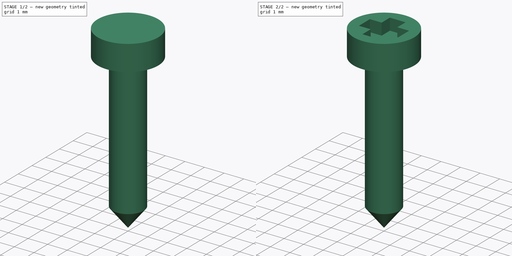
[diagram: build sequence overview — one tinted view per stage of 2, left to right]
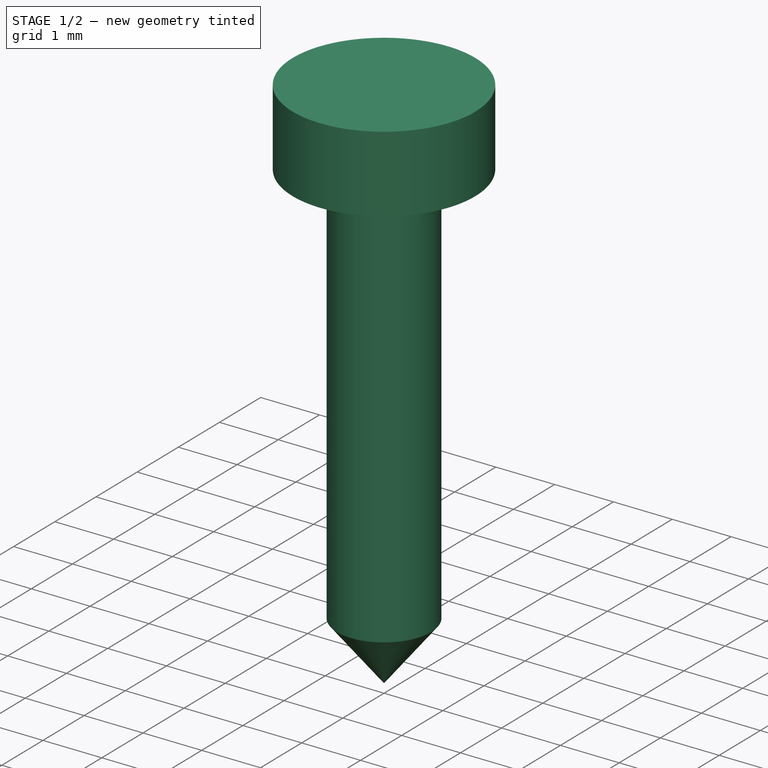
[diagram: stage 1 of 2 — iso view after this stage's code; geometry added in this stage tinted green]
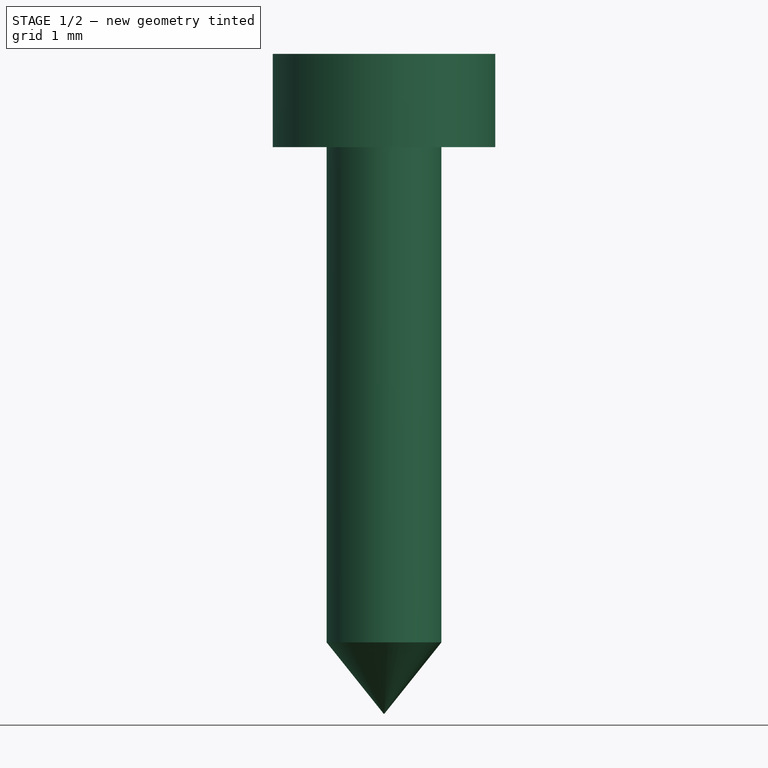
[diagram: stage 1 of 2 — front view after this stage's code; geometry added in this stage tinted green]
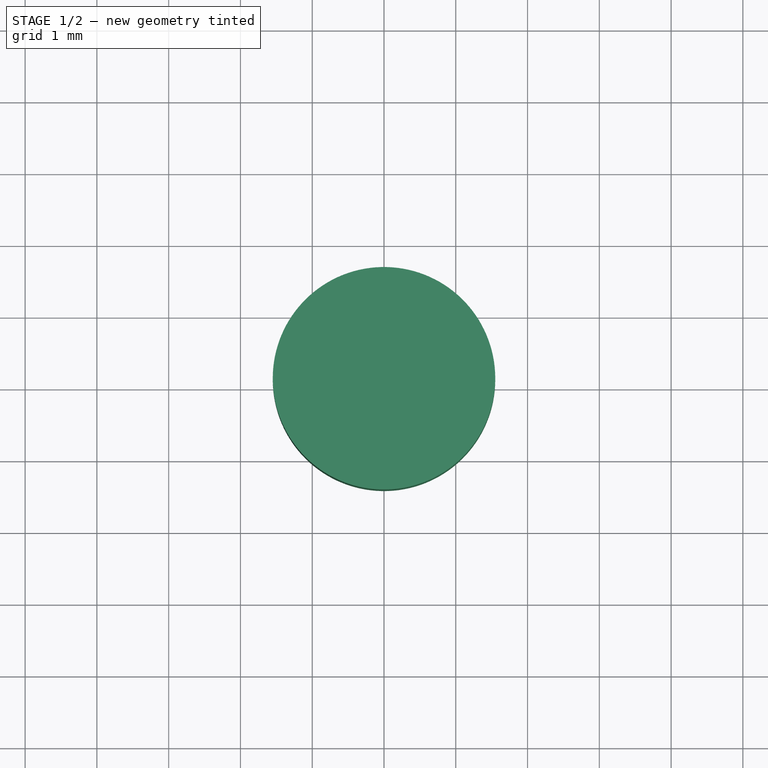
[diagram: stage 1 of 2 — top view after this stage's code; geometry added in this stage tinted green]
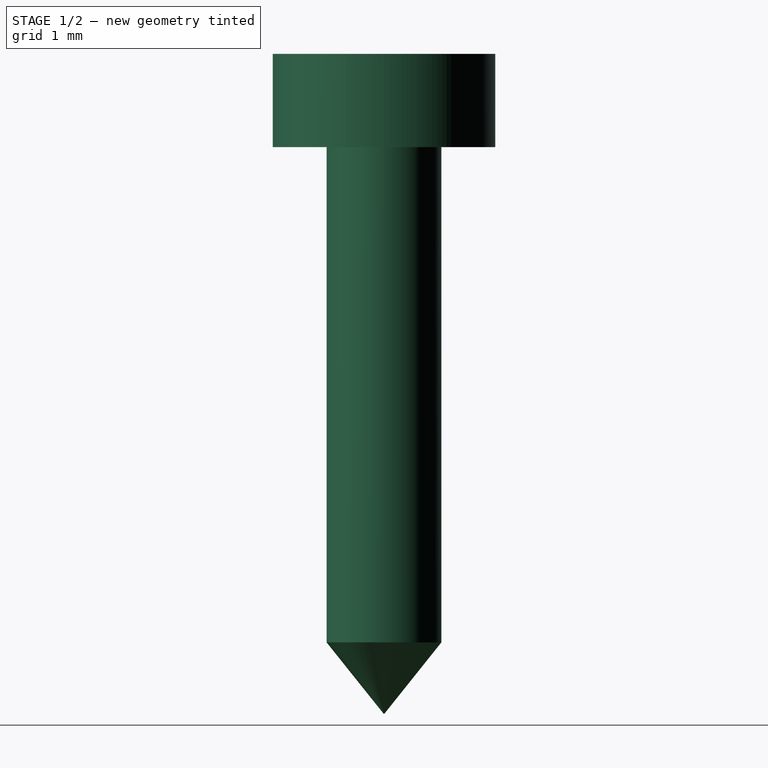
[diagram: stage 1 of 2 — right view after this stage's code; geometry added in this stage tinted green]
FCSTD DOCUMENT  (FreeCAD 1.0R39319 (Git))
Label: Servo-SG90-screw-2x7_5
License: CC-BY 3.0
LicenseURL: http://creativecommons.org/licenses/by/3.0/
objects: Sketcher::SketchObject×2, PartDesign::Revolution×1, PartDesign::Pocket×1, Part::Cut×1
note: 11 computed .brp shape members not serialized (recipe doc carries the construction recipe); baked Part::Feature solids carry a one-line shape summary decoded from their .brp

FEATURE [Sketcher::SketchObject] Sketch  label="screw-body-sketch"
  ArcFitTolerance = 0
  FullyConstrained = true
  MakeInternals = false
  MapMode = 5
  Placement = pos=(0,0,0) rot=(1,0,0;1.5708rad)
  sketch-geometry (6):
    g0: LineSegment StartX=0 StartY=0 StartZ=0 EndX=0 EndY=9.2 EndZ=0
    g1: LineSegment StartX=0 StartY=9.2 StartZ=0 EndX=1.55 EndY=9.2 EndZ=0
    g2: LineSegment StartX=1.55 StartY=9.2 StartZ=0 EndX=1.55 EndY=7.9 EndZ=0
    g3: LineSegment StartX=1.55 StartY=7.9 StartZ=0 EndX=0.8 EndY=7.9 EndZ=0
    g4: LineSegment StartX=0.8 StartY=7.9 StartZ=0 EndX=0.8 EndY=1 EndZ=0
    g5: LineSegment StartX=0.8 StartY=1 StartZ=0 EndX=0 EndY=0 EndZ=0
  constraints (17):
    c: Vertical(g0)
    c: Coincident(g0,g1)
    c: Horizontal(g1)
    c: Coincident(g1,g2)
    c: Coincident(g2,g3)
    c: Horizontal(g3)
    c: Coincident(g3,g4)
    c: Vertical(g4)
    c: Coincident(g4,g5)
    c: Coincident(g5,g0)
    c: Coincident(g0,g-1)
    c: DistanceX(g-1,g4) = 0.8
    c: DistanceY(g0) = 9.2
    c: Vertical(g2)
    c: DistanceX(g1) = 1.55
    c: DistanceY(g-1,g4) = 1
    c: DistanceY(g2) = -1.3
FEATURE [PartDesign::Revolution] Revolution  label="screw-body"
  AllowMultiFace = false
  Angle = 360
  Angle2 = 60
  Axis = (0,0,1)
  Base = (0,0,0)
  Placement = pos=(0,0,0) rot=(1,0,0;1.5708rad)
  Profile = -> Sketch
  ReferenceAxis = -> Sketch [V_Axis]
  Refine = true
  Reversed = true
  Suppressed = false
  Type = 0
FEATURE [Sketcher::SketchObject] Sketch001  label="top-cross-sketch"
  ArcFitTolerance = 0
  AttachmentSupport = -> [Revolution]
  FullyConstrained = true
  MakeInternals = false
  MapMode = 5
  Placement = pos=(0,2e-15,9.2) rot=(0,0,1;3.14159rad)
  sketch-geometry (12):
    g0: LineSegment StartX=-1 StartY=-0.4 StartZ=0 EndX=-1 EndY=0.4 EndZ=0
    g1: LineSegment StartX=-1 StartY=0.4 StartZ=0 EndX=-0.4 EndY=0.4 EndZ=0
    g2: LineSegment StartX=-0.4 StartY=0.4 StartZ=0 EndX=-0.4 EndY=1 EndZ=0
    g3: LineSegment StartX=-0.4 StartY=1 StartZ=0 EndX=0.4 EndY=1 EndZ=0
    g4: LineSegment StartX=0.4 StartY=1 StartZ=0 EndX=0.4 EndY=0.4 EndZ=0
    g5: LineSegment StartX=0.4 StartY=0.4 StartZ=0 EndX=1 EndY=0.4 EndZ=0
    g6: LineSegment StartX=1 StartY=0.4 StartZ=0 EndX=1 EndY=-0.4 EndZ=0
    g7: LineSegment StartX=1 StartY=-0.4 StartZ=0 EndX=0.4 EndY=-0.4 EndZ=0
    g8: LineSegment StartX=0.4 StartY=-0.4 StartZ=0 EndX=0.4 EndY=-1 EndZ=0
    g9: LineSegment StartX=0.4 StartY=-1 StartZ=0 EndX=-0.4 EndY=-1 EndZ=0
    g10: LineSegment StartX=-0.4 StartY=-1 StartZ=0 EndX=-0.4 EndY=-0.4 EndZ=0
    g11: LineSegment StartX=-0.4 StartY=-0.4 StartZ=0 EndX=-1 EndY=-0.4 EndZ=0
  constraints (29):
    c: Coincident(g0,g1)
    c: Horizontal(g1)
    c: Coincident(g1,g2)
    c: Vertical(g2)
    c: Coincident(g2,g3)
    c: Coincident(g3,g4)
    c: Coincident(g4,g5)
    c: Coincident(g5,g6)
    c: Vertical(g6)
    c: Coincident(g6,g7)
    c: Horizontal(g7)
    c: Coincident(g7,g8)
    c: Coincident(g8,g9)
    c: Horizontal(g9)
    c: Coincident(g9,g10)
    c: Vertical(g10)
    c: Coincident(g10,g11)
    c: Coincident(g0,g11)
    c: Symmetric(g0,g0,g-1)
    c: Equal(g1,g2)
    c: Symmetric(g2,g3,g-2)
    c: Symmetric(g1,g4,g-2)
    c: Symmetric(g1,g7,g-1)
    c: Symmetric(g10,g7,g-2)
    c: Equal(g0,g3)
    c: Symmetric(g8,g3,g-1)
    c: Symmetric(g0,g5,g-2)
    c: DistanceX(g0,g5) = 2
    c: DistanceX(g3) = 0.8
FEATURE [PartDesign::Pocket] Pocket  label="top-cross"
  AllowMultiFace = false
  Direction = (0,0,-1)
  Length = 0.6
  Length2 = 5
  Placement = pos=(0,0,0) rot=(1,0,0;1.5708rad)
  Profile = -> Sketch001
  Refine = true
  Suppressed = false
  Type = 0
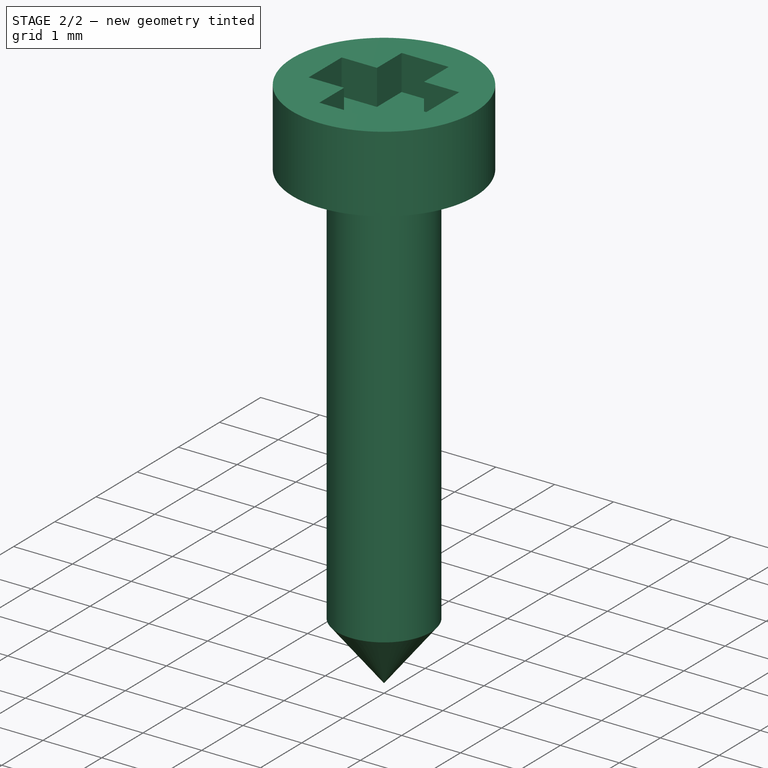
[diagram: stage 2 of 2 — iso view after this stage's code; geometry added in this stage tinted green]
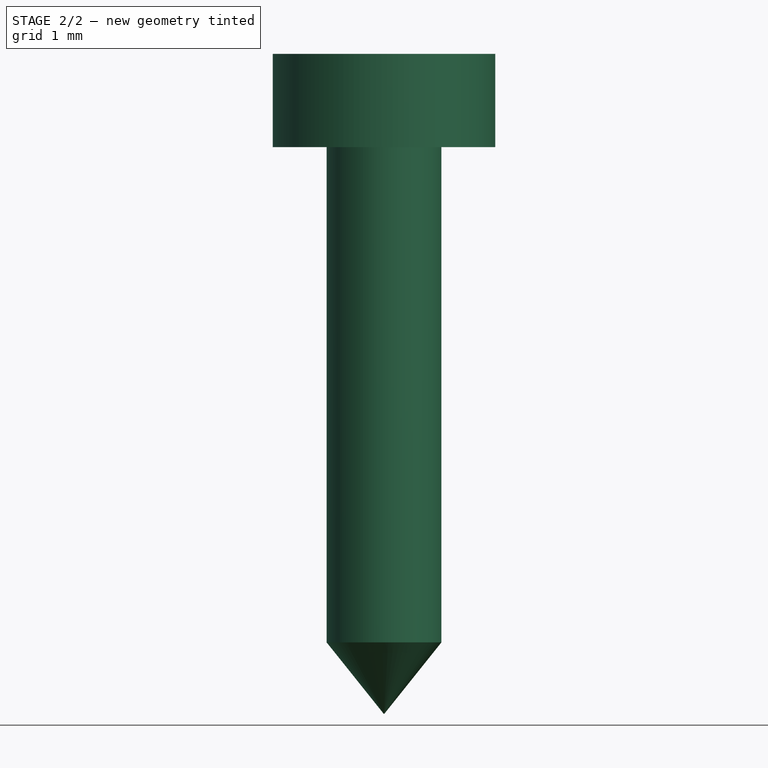
[diagram: stage 2 of 2 — front view after this stage's code; geometry added in this stage tinted green]
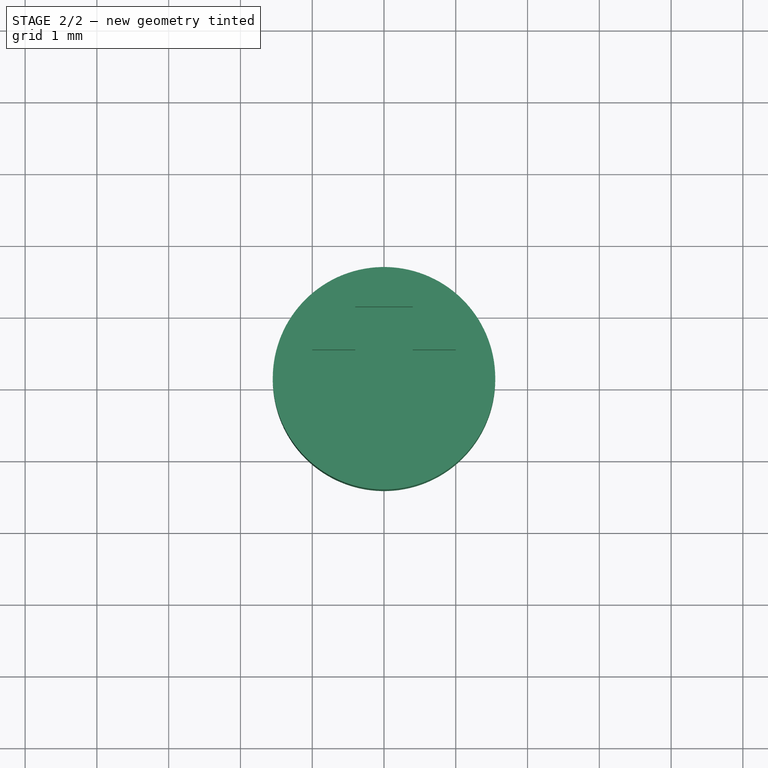
[diagram: stage 2 of 2 — top view after this stage's code; geometry added in this stage tinted green]
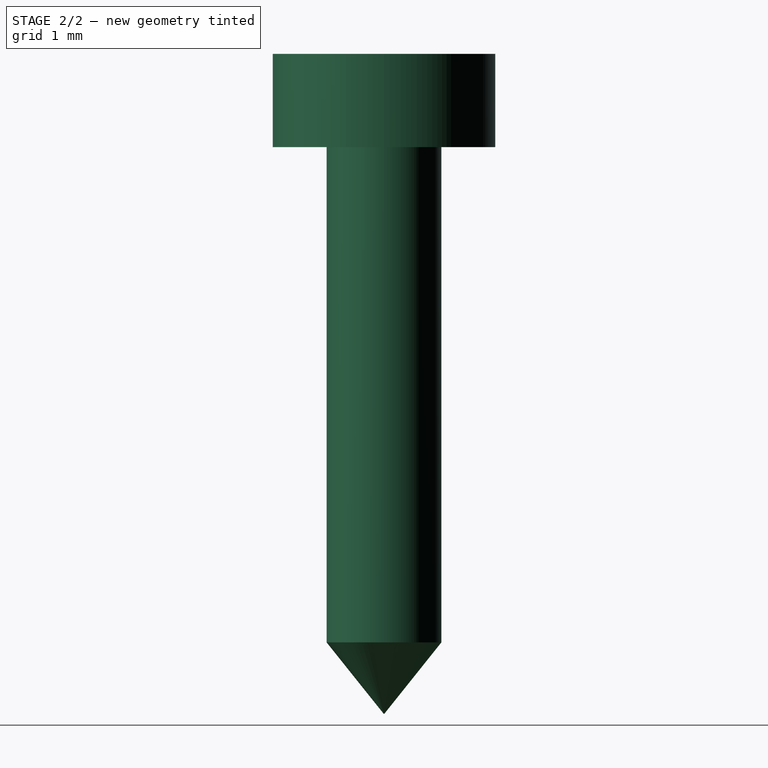
[diagram: stage 2 of 2 — right view after this stage's code; geometry added in this stage tinted green]
FEATURE [Part::Cut] Cut
  Base = -> Revolution
  Tool = -> Pocket
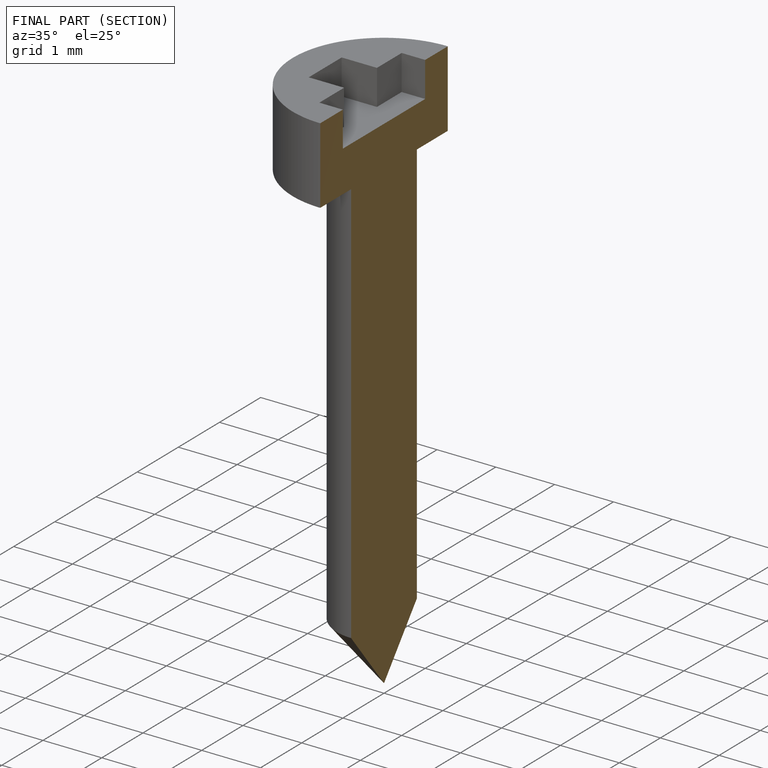
[diagram: finished part — half-section view (interior)]
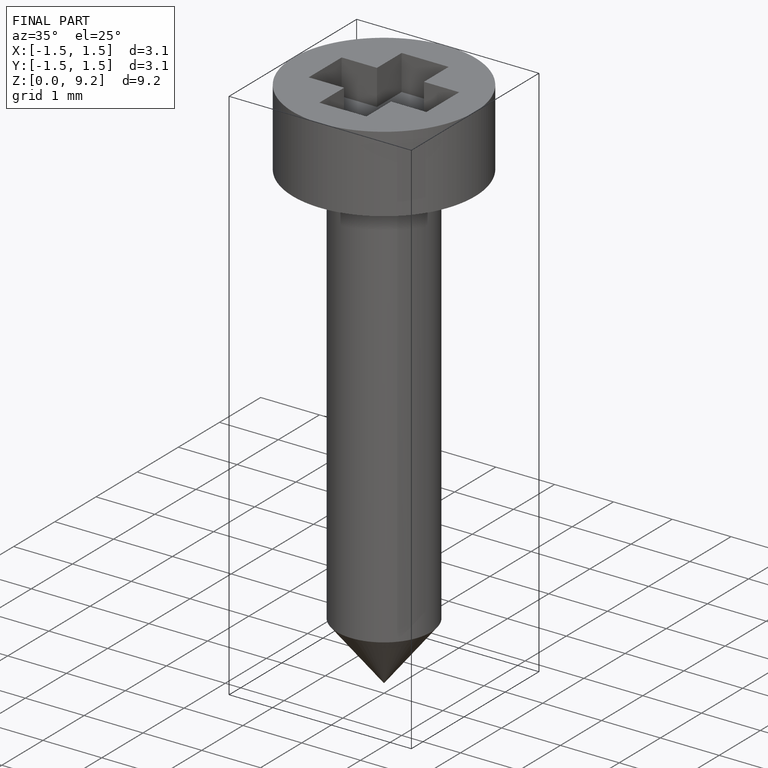
[diagram: finished part — iso view with bounding-box wireframe]
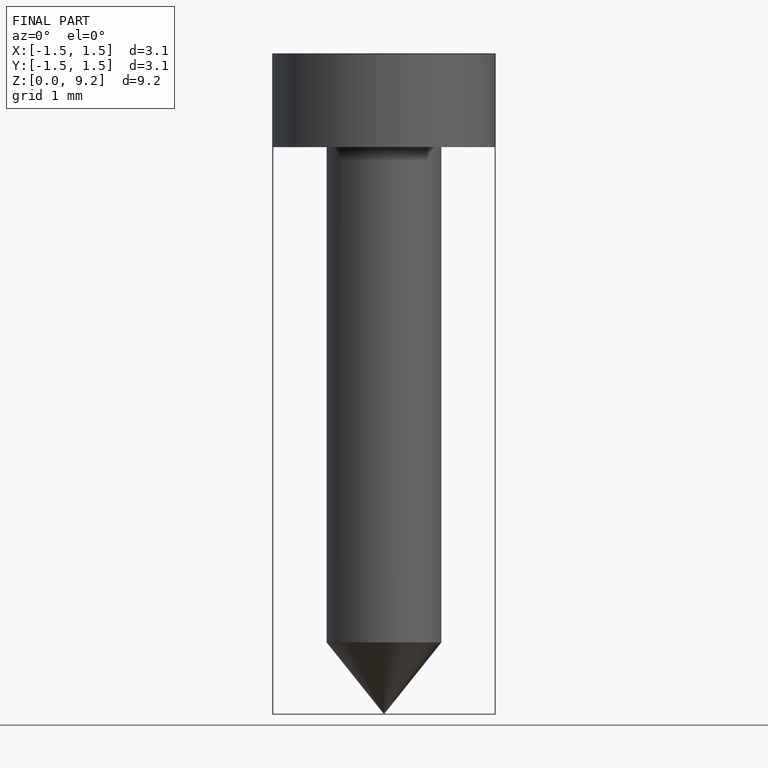
[diagram: finished part — front view with bounding-box wireframe]
